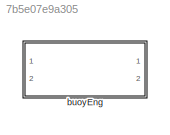
MODEL slx_7b5e07e9a305
KIND library
CONFIG AbsTol = auto
CONFIG EnableMultiTasking = off
CONFIG FixedStep = auto
CONFIG MaxStep = auto
CONFIG MinStep = auto
CONFIG RelTol = 1e-3
CONFIG SampleTimeConstraint = Unconstrained
CONFIG SolverName = VariableStepAuto
CONFIG StartTime = 0.0
CONFIG StopTime = 10.0
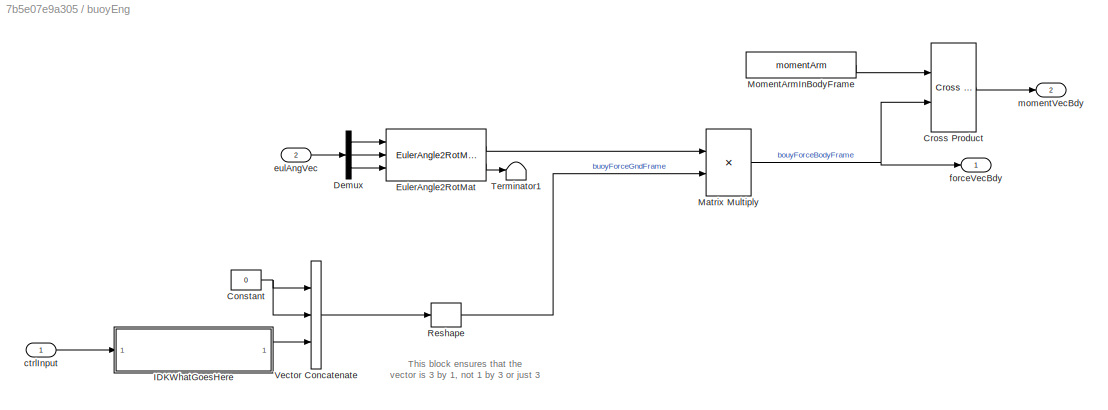
BLOCK [SubSystem] buoyEng
  Ports = [2, 2]
  RequestExecContextInheritance = off
BLOCK [Constant] buoyEng/Constant
  Value = 0
BLOCK [Reference] buoyEng/Cross Product  REF=vrlib/Utilities/Cross Product
  Ports = [2, 1]
  SourceBlock = vrlib/Utilities/Cross Product
  SourceProductBaseCode = SL
  SourceType = Cross Product
BLOCK [Demux] buoyEng/Demux
  Outputs = 3
  Ports = [1, 3]
BLOCK [Reference] buoyEng/EulerAngle2RotMat  REF=eulAng2RotMat_ul/EulerAngle2RotMat
  Ports = [3, 2]
  SourceBlock = eulAng2RotMat_ul/EulerAngle2RotMat
  SourceType = SubSystem
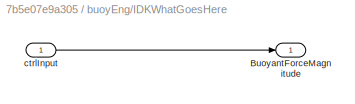
BLOCK [SubSystem] buoyEng/IDKWhatGoesHere
  Ports = [1, 1]
  RequestExecContextInheritance = off
BLOCK [Outport] buoyEng/IDKWhatGoesHere/BuoyantForceMagnitude
BLOCK [Inport] buoyEng/IDKWhatGoesHere/ctrlInput
BLOCK [Product] buoyEng/Matrix Multiply
  Multiplication = Matrix(*)
  Ports = [2, 1]
BLOCK [Constant] buoyEng/MomentArmInBodyFrame
  Value = momentArm
BLOCK [Reshape] buoyEng/Reshape
  OutputDimensionality = Column vector (2-D)
  Ports = [1, 1]
BLOCK [Terminator] buoyEng/Terminator1
BLOCK [Concatenate] buoyEng/Vector Concatenate
  NumInputs = 3
  Ports = [3, 1]
BLOCK [Inport] buoyEng/ctrlInput
BLOCK [Inport] buoyEng/eulAngVec
  Port = 2
BLOCK [Outport] buoyEng/forceVecBdy
BLOCK [Outport] buoyEng/momentVecBdy
  Port = 2
ANNOTATION buoyEng: This block ensures that the vector is 3 by 1, not 1 by 3 or just 3
NET buoyEng/Constant:1 -> buoyEng/Vector Concatenate:1, buoyEng/Vector Concatenate:2
LINE buoyEng/Cross Product:1 -> buoyEng/momentVecBdy:1
LINE buoyEng/Demux:1 -> buoyEng/EulerAngle2RotMat:1
LINE buoyEng/Demux:2 -> buoyEng/EulerAngle2RotMat:2
LINE buoyEng/Demux:3 -> buoyEng/EulerAngle2RotMat:3
LINE buoyEng/EulerAngle2RotMat:1 -> buoyEng/Matrix Multiply:1
LINE buoyEng/EulerAngle2RotMat:2 -> buoyEng/Terminator1:1
LINE buoyEng/IDKWhatGoesHere/ctrlInput:1 -> buoyEng/IDKWhatGoesHere/BuoyantForceMagnitude:1
LINE buoyEng/IDKWhatGoesHere:1 -> buoyEng/Vector Concatenate:3
NET buoyEng/Matrix Multiply:1 -> buoyEng/Cross Product:2, buoyEng/forceVecBdy:1
LINE buoyEng/MomentArmInBodyFrame:1 -> buoyEng/Cross Product:1
LINE buoyEng/Reshape:1 -> buoyEng/Matrix Multiply:2
LINE buoyEng/Vector Concatenate:1 -> buoyEng/Reshape:1
LINE buoyEng/ctrlInput:1 -> buoyEng/IDKWhatGoesHere:1
LINE buoyEng/eulAngVec:1 -> buoyEng/Demux:1
note: NET lines group one-source signal fan-out (src -> all destinations, sorted); 1:1 wires keep LINE
